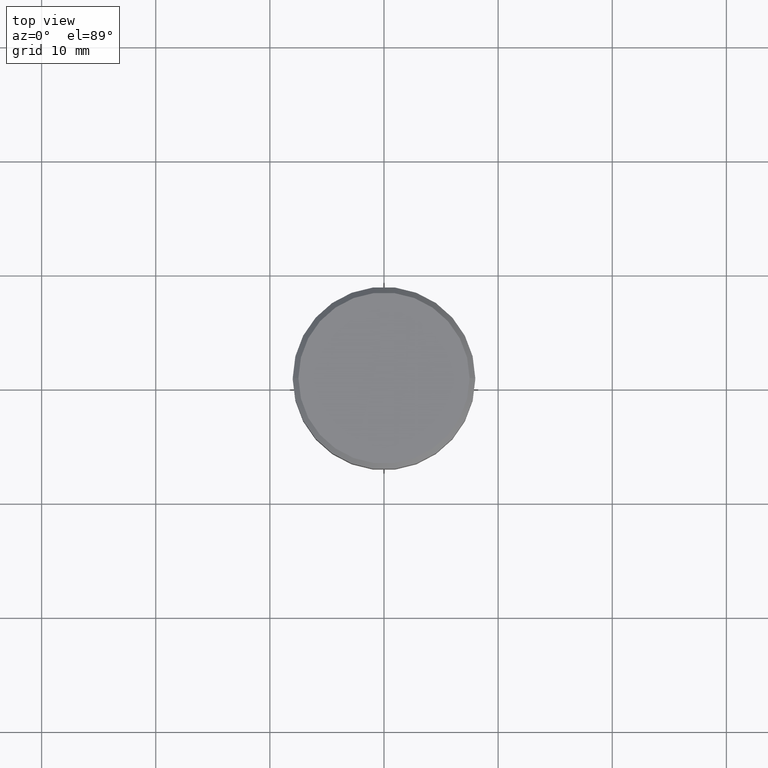
[diagram: clean part render]
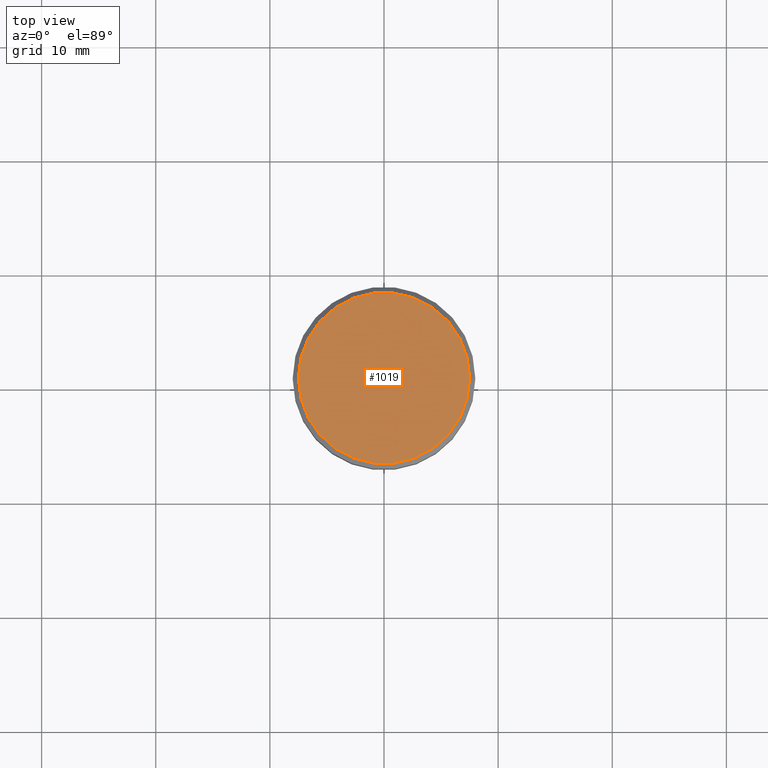
[diagram: same view with one face highlighted and labeled with its STEP entity id]
A machine part, top view. The second image highlights one B-rep face of the part: STEP entity #1019.
In plain terms, the highlighted planar face has unit normal (0, -0, 1).
Its self-contained STEP definition (entity closure, byte-faithful):
#17 = DIRECTION ( 'NONE',  ( 1.000000000000000000, 0.000000000000000000, 0.000000000000000000 ) ) ;
#48 = VERTEX_POINT ( 'NONE', #703 ) ;
#62 = VERTEX_POINT ( 'NONE', #955 ) ;
#265 = DIRECTION ( 'NONE',  ( -0.000000000000000000, -0.000000000000000000, 1.000000000000000000 ) ) ;
#327 = AXIS2_PLACEMENT_3D ( 'NONE', #408, #1056, #17 ) ;
#408 = CARTESIAN_POINT ( 'NONE',  ( 0.000000000000000000, 0.000000000000000000, 0.000000000000000000 ) ) ;
#416 = CARTESIAN_POINT ( 'NONE',  ( 0.000000000000000000, 0.000000000000000000, 0.000000000000000000 ) ) ;
#459 = CARTESIAN_POINT ( 'NONE',  ( 0.000000000000000000, 0.000000000000000000, 0.000000000000000000 ) ) ;
#518 = DIRECTION ( 'NONE',  ( 0.000000000000000000, -0.000000000000000000, 1.000000000000000000 ) ) ;
#532 = PLANE ( 'NONE',  #568 ) ;
#568 = AXIS2_PLACEMENT_3D ( 'NONE', #459, #518, #949 ) ;
#614 = EDGE_CURVE ( 'NONE', #48, #62, #769, .T. ) ;
#681 = FACE_OUTER_BOUND ( 'NONE', #870, .T. ) ;
#703 = CARTESIAN_POINT ( 'NONE',  ( 7.499999999999992895, 9.491012693391981871E-16, 0.000000000000000000 ) ) ;
#752 = DIRECTION ( 'NONE',  ( 1.000000000000000000, 0.000000000000000000, 0.000000000000000000 ) ) ;
#758 = ORIENTED_EDGE ( 'NONE', *, *, #1000, .T. ) ;
#769 = CIRCLE ( 'NONE', #327, 7.499999999999992895 ) ;
#870 = EDGE_LOOP ( 'NONE', ( #758, #907 ) ) ;
#907 = ORIENTED_EDGE ( 'NONE', *, *, #614, .T. ) ;
#949 = DIRECTION ( 'NONE',  ( 1.000000000000000000, 0.000000000000000000, 0.000000000000000000 ) ) ;
#955 = CARTESIAN_POINT ( 'NONE',  ( -7.499999999999992895, 0.000000000000000000, 0.000000000000000000 ) ) ;
#962 = CIRCLE ( 'NONE', #1026, 7.499999999999992895 ) ;
#1000 = EDGE_CURVE ( 'NONE', #62, #48, #962, .T. ) ;
#1019 = ADVANCED_FACE ( 'NONE', ( #681 ), #532, .T. ) ;
#1026 = AXIS2_PLACEMENT_3D ( 'NONE', #416, #265, #752 ) ;
#1056 = DIRECTION ( 'NONE',  ( -0.000000000000000000, -0.000000000000000000, 1.000000000000000000 ) ) ;